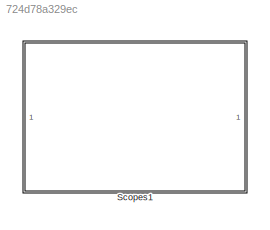
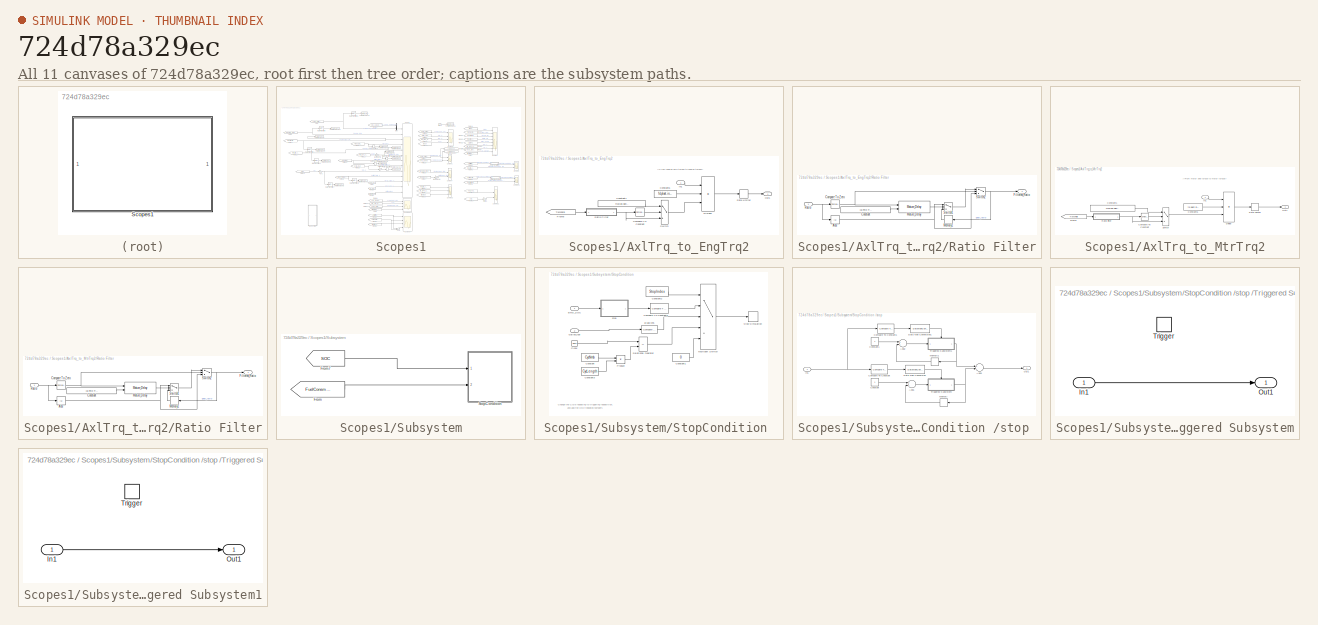
[diagram: thumbnail index - all 11 canvases of the model, root first then tree order]
MODEL slx_724d78a329ec
KIND library
CONFIG AbsTol = auto
CONFIG EnableMultiTasking = off
CONFIG FixedStep = auto
CONFIG MaxStep = auto
CONFIG MinStep = auto
CONFIG RelTol = 1e-3
CONFIG SampleTimeConstraint = Unconstrained
CONFIG Solver = VariableStepAuto
CONFIG SolverName = VariableStepAuto
CONFIG StartTime = 0.0
CONFIG StopTime = 10.0
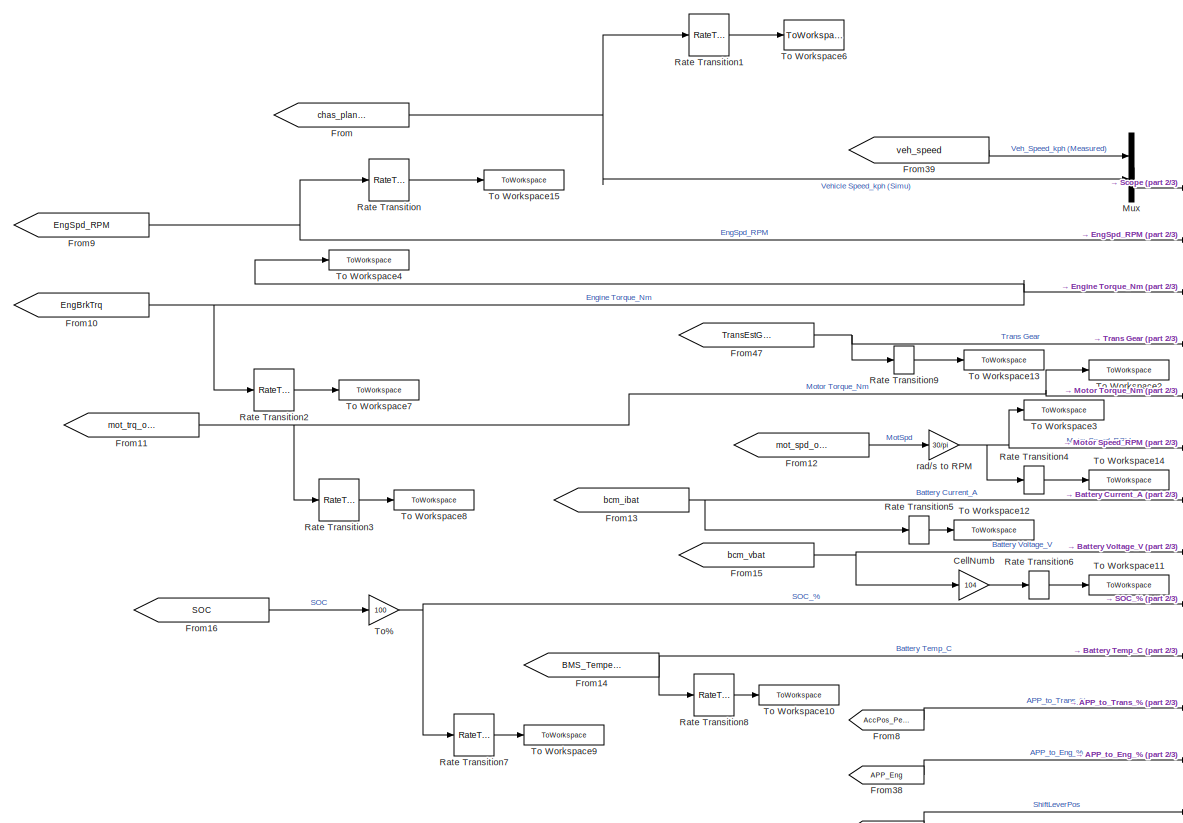
[diagram: Scopes1 - part 1/3, middle left region]
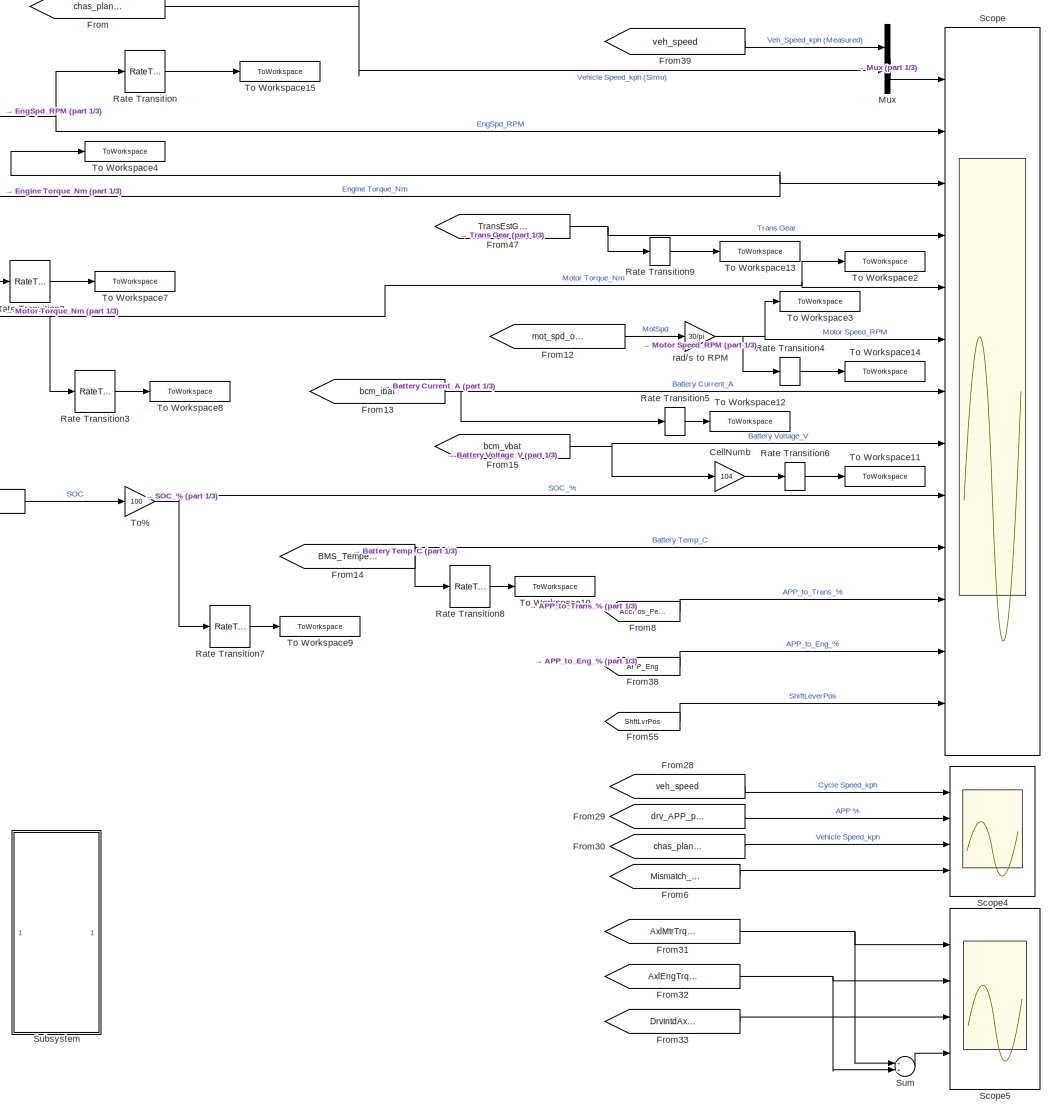
[diagram: Scopes1 - part 2/3, left side, full height]
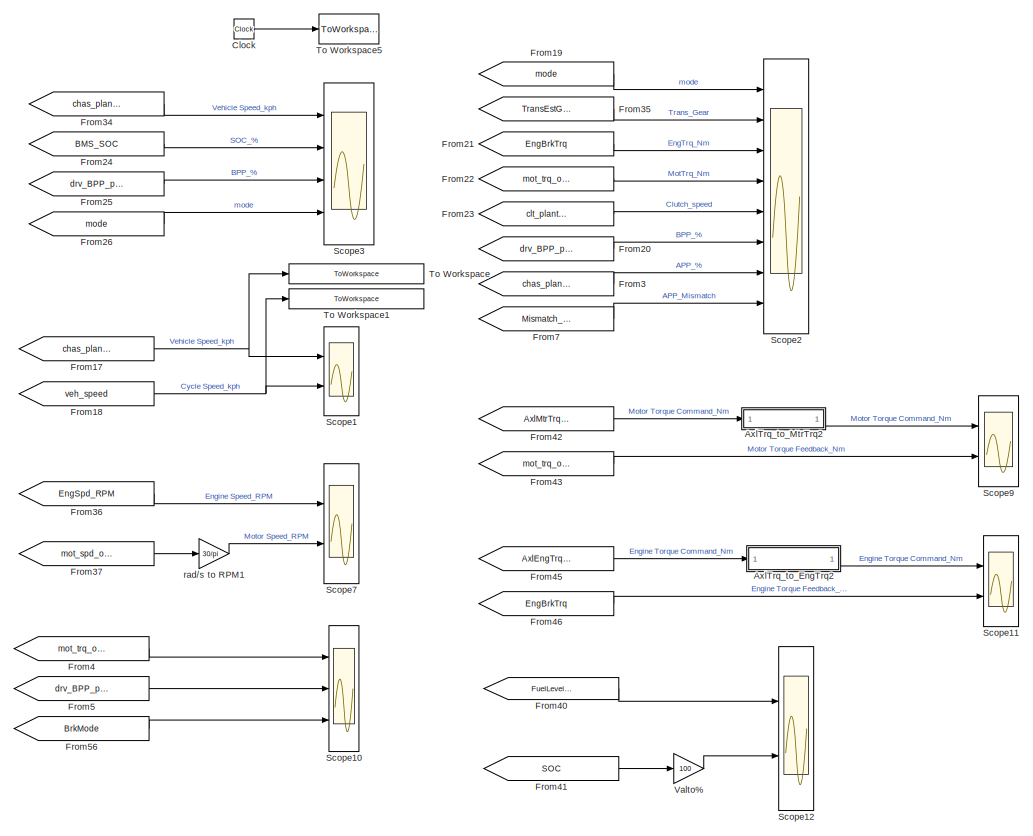
[diagram: Scopes1 - part 3/3, middle right region]
BLOCK [SubSystem] Scopes1
  Ports = []
  RequestExecContextInheritance = off
  Variant = off
BLOCK [SubSystem] Scopes1/AxlTrq_to_EngTrq2
  Ports = [1, 1]
  RequestExecContextInheritance = off
  Variant = off
BLOCK [Reference] Scopes1/AxlTrq_to_EngTrq2/Compare To Constant  REF=simulink/Logic and Bit
Operations/Compare
To Constant
  Ports = [1, 1]
  SourceBlock = simulink/Logic and Bit\nOperations/Compare\nTo Constant
  SourceProductBaseCode = SL
  SourceProductName = Simulink
  SourceType = Compare To Constant
BLOCK [Constant] Scopes1/AxlTrq_to_EngTrq2/Constant1
  Value = max(gb.plant.init.ratio.map)
BLOCK [Constant] Scopes1/AxlTrq_to_EngTrq2/Constant5
  Value = fd.plant.init.ratio
BLOCK [Product] Scopes1/AxlTrq_to_EngTrq2/Divide1
  InputSameDT = off
  Inputs = *//
  OutDataTypeStr = Inherit: Inherit via internal rule
  Ports = [3, 1]
  RndMeth = Floor
  SaturateOnIntegerOverflow = off
BLOCK [From] Scopes1/AxlTrq_to_EngTrq2/From8
  GotoTag = TransRatio
  TagVisibility = global
BLOCK [Inport] Scopes1/AxlTrq_to_EngTrq2/In1
  IconDisplay = Port number
BLOCK [Outport] Scopes1/AxlTrq_to_EngTrq2/Out1
  IconDisplay = Port number
BLOCK [RateLimiter] Scopes1/AxlTrq_to_EngTrq2/Rate Limiter
  FallingSlewLimit = Engine.trq_derate
  RisingSlewLimit = Engine.trq_uprate
BLOCK [SubSystem] Scopes1/AxlTrq_to_EngTrq2/Ratio Filter
  Ports = [1, 1]
  RequestExecContextInheritance = off
  Variant = off
BLOCK [Abs] Scopes1/AxlTrq_to_EngTrq2/Ratio Filter/Abs
  SaturateOnIntegerOverflow = off
BLOCK [Reference] Scopes1/AxlTrq_to_EngTrq2/Ratio Filter/Compare To Zero  REF=simulink/Logic and Bit
Operations/Compare
To Zero
  Ports = [1, 1]
  SourceBlock = simulink/Logic and Bit\nOperations/Compare\nTo Zero
  SourceProductBaseCode = SL
  SourceProductName = Simulink
  SourceType = Compare To Zero
BLOCK [Constant] Scopes1/AxlTrq_to_EngTrq2/Ratio Filter/Constant
  Value = cal.Time.TrnsOvrllEstTrqRatioSwitch
BLOCK [Outport] Scopes1/AxlTrq_to_EngTrq2/Ratio Filter/Filtered_Ratio
  IconDisplay = Port number
BLOCK [Reference] Scopes1/AxlTrq_to_EngTrq2/Ratio Filter/Mature_Delay  REF=EC2_libraries/Mature_Delay
  Ports = [2, 1]
  SourceBlock = EC2_libraries/Mature_Delay
  SourceProductName = The database <userpath>\AppData\Roaming\MathWorks\MATLAB\R2017b\slblocks_master.db is locked, or a table in the database is locked. (database is locked)
  SourceType = SubSystem
BLOCK [Memory] Scopes1/AxlTrq_to_EngTrq2/Ratio Filter/Memory1
  InitialCondition = 1
BLOCK [Inport] Scopes1/AxlTrq_to_EngTrq2/Ratio Filter/Ratio
  IconDisplay = Port number
BLOCK [Switch] Scopes1/AxlTrq_to_EngTrq2/Ratio Filter/Switch1
  InputSameDT = off
  SaturateOnIntegerOverflow = off
  Threshold = 1
BLOCK [Switch] Scopes1/AxlTrq_to_EngTrq2/Ratio Filter/Switch2
  InputSameDT = off
  SaturateOnIntegerOverflow = off
  Threshold = 1
BLOCK [Switch] Scopes1/AxlTrq_to_EngTrq2/Switch
  Criteria = u2 > Threshold
  InputSameDT = off
  SaturateOnIntegerOverflow = off
BLOCK [SubSystem] Scopes1/AxlTrq_to_MtrTrq2
  Ports = [1, 1]
  RequestExecContextInheritance = off
  Variant = off
BLOCK [Reference] Scopes1/AxlTrq_to_MtrTrq2/Compare To Constant  REF=simulink/Logic and Bit
Operations/Compare
To Constant
  Ports = [1, 1]
  SourceBlock = simulink/Logic and Bit\nOperations/Compare\nTo Constant
  SourceProductBaseCode = SL
  SourceProductName = Simulink
  SourceType = Compare To Constant
BLOCK [Constant] Scopes1/AxlTrq_to_MtrTrq2/Constant1
  Value = max(gb.plant.init.ratio.map)
BLOCK [Constant] Scopes1/AxlTrq_to_MtrTrq2/Constant5
  Value = fd.plant.init.ratio
BLOCK [Product] Scopes1/AxlTrq_to_MtrTrq2/Divide
  InputSameDT = off
  Inputs = *//
  OutDataTypeStr = Inherit: Inherit via internal rule
  Ports = [3, 1]
  RndMeth = Floor
  SaturateOnIntegerOverflow = off
BLOCK [From] Scopes1/AxlTrq_to_MtrTrq2/From8
  GotoTag = TransRatio
  TagVisibility = global
BLOCK [Inport] Scopes1/AxlTrq_to_MtrTrq2/In1
  IconDisplay = Port number
BLOCK [Outport] Scopes1/AxlTrq_to_MtrTrq2/Out1
  IconDisplay = Port number
BLOCK [RateLimiter] Scopes1/AxlTrq_to_MtrTrq2/Rate Limiter
  FallingSlewLimit = mcu.plant.init.trq_derate
  RisingSlewLimit = mcu.plant.init.trq_uprate
BLOCK [SubSystem] Scopes1/AxlTrq_to_MtrTrq2/Ratio Filter
  Ports = [1, 1]
  RequestExecContextInheritance = off
  Variant = off
BLOCK [Abs] Scopes1/AxlTrq_to_MtrTrq2/Ratio Filter/Abs
  SaturateOnIntegerOverflow = off
BLOCK [Reference] Scopes1/AxlTrq_to_MtrTrq2/Ratio Filter/Compare To Zero  REF=simulink/Logic and Bit
Operations/Compare
To Zero
  Ports = [1, 1]
  SourceBlock = simulink/Logic and Bit\nOperations/Compare\nTo Zero
  SourceProductBaseCode = SL
  SourceProductName = Simulink
  SourceType = Compare To Zero
BLOCK [Constant] Scopes1/AxlTrq_to_MtrTrq2/Ratio Filter/Constant
  Value = cal.Time.TrnsOvrllEstTrqRatioSwitch
BLOCK [Outport] Scopes1/AxlTrq_to_MtrTrq2/Ratio Filter/Filtered_Ratio
  IconDisplay = Port number
BLOCK [Reference] Scopes1/AxlTrq_to_MtrTrq2/Ratio Filter/Mature_Delay  REF=EC2_libraries/Mature_Delay
  Ports = [2, 1]
  SourceBlock = EC2_libraries/Mature_Delay
  SourceProductName = The database <userpath>\AppData\Roaming\MathWorks\MATLAB\R2017b\slblocks_master.db is locked, or a table in the database is locked. (database is locked)
  SourceType = SubSystem
BLOCK [Memory] Scopes1/AxlTrq_to_MtrTrq2/Ratio Filter/Memory1
  InitialCondition = 1
BLOCK [Inport] Scopes1/AxlTrq_to_MtrTrq2/Ratio Filter/Ratio
  IconDisplay = Port number
BLOCK [Switch] Scopes1/AxlTrq_to_MtrTrq2/Ratio Filter/Switch1
  InputSameDT = off
  SaturateOnIntegerOverflow = off
  Threshold = 1
BLOCK [Switch] Scopes1/AxlTrq_to_MtrTrq2/Ratio Filter/Switch2
  InputSameDT = off
  SaturateOnIntegerOverflow = off
  Threshold = 1
BLOCK [Switch] Scopes1/AxlTrq_to_MtrTrq2/Switch
  Criteria = u2 > Threshold
  InputSameDT = off
  SaturateOnIntegerOverflow = off
BLOCK [Gain] Scopes1/CellNumb
  Gain = 104
  OutDataTypeStr = Inherit: Inherit via internal rule
  ParamDataTypeStr = Inherit: Inherit via internal rule
  SaturateOnIntegerOverflow = off
BLOCK [Clock] Scopes1/Clock
  Decimation = WORKSPACE_DECIMATION
BLOCK [From] Scopes1/From
  GotoTag = chas_plant_lin_spd_out
  TagVisibility = global
BLOCK [From] Scopes1/From10
  GotoTag = EngBrkTrq
  TagVisibility = global
BLOCK [From] Scopes1/From11
  GotoTag = mot_trq_out
  TagVisibility = global
BLOCK [From] Scopes1/From12
  GotoTag = mot_spd_out
  TagVisibility = global
BLOCK [From] Scopes1/From13
  GotoTag = bcm_ibat
  TagVisibility = global
BLOCK [From] Scopes1/From14
  GotoTag = BMS_Temperatur
  TagVisibility = global
BLOCK [From] Scopes1/From15
  GotoTag = bcm_vbat
  TagVisibility = global
BLOCK [From] Scopes1/From16
  GotoTag = SOC
  TagVisibility = global
BLOCK [From] Scopes1/From17
  GotoTag = chas_plant_lin_spd_out
  TagVisibility = global
BLOCK [From] Scopes1/From18
  GotoTag = veh_speed
  TagVisibility = global
BLOCK [From] Scopes1/From19
  GotoTag = mode
  TagVisibility = global
BLOCK [From] Scopes1/From20
  GotoTag = drv_BPP_percent
  TagVisibility = global
BLOCK [From] Scopes1/From21
  GotoTag = EngBrkTrq
  TagVisibility = global
BLOCK [From] Scopes1/From22
  GotoTag = mot_trq_out
  TagVisibility = global
BLOCK [From] Scopes1/From23
  GotoTag = clt_plant_spd_in
BLOCK [From] Scopes1/From24
  GotoTag = BMS_SOC
  TagVisibility = global
BLOCK [From] Scopes1/From25
  GotoTag = drv_BPP_percent
  TagVisibility = global
BLOCK [From] Scopes1/From26
  GotoTag = mode
  TagVisibility = global
BLOCK [From] Scopes1/From28
  GotoTag = veh_speed
  TagVisibility = global
BLOCK [From] Scopes1/From29
  GotoTag = drv_APP_percent
  TagVisibility = global
BLOCK [From] Scopes1/From3
  GotoTag = chas_plant_lin_accel
  TagVisibility = global
BLOCK [From] Scopes1/From30
  GotoTag = chas_plant_lin_spd_out
  TagVisibility = global
BLOCK [From] Scopes1/From31
  GotoTag = AxlMtrTrqCmd
  TagVisibility = global
BLOCK [From] Scopes1/From32
  GotoTag = AxlEngTrqCmd
  TagVisibility = global
BLOCK [From] Scopes1/From33
  GotoTag = DrvIntdAxleTrq
  TagVisibility = global
BLOCK [From] Scopes1/From34
  GotoTag = chas_plant_lin_spd_out
  TagVisibility = global
BLOCK [From] Scopes1/From35
  GotoTag = TransEstGear
  TagVisibility = global
BLOCK [From] Scopes1/From36
  GotoTag = EngSpd_RPM
  TagVisibility = global
BLOCK [From] Scopes1/From37
  GotoTag = mot_spd_out
  TagVisibility = global
BLOCK [From] Scopes1/From38
  GotoTag = APP_Eng
  TagVisibility = global
BLOCK [From] Scopes1/From39
  GotoTag = veh_speed
  TagVisibility = global
BLOCK [From] Scopes1/From4
  GotoTag = mot_trq_out
  TagVisibility = global
BLOCK [From] Scopes1/From40
  GotoTag = FuelLevelPct
  TagVisibility = global
BLOCK [From] Scopes1/From41
  GotoTag = SOC
  TagVisibility = global
BLOCK [From] Scopes1/From42
  GotoTag = AxlMtrTrqCmd
  TagVisibility = global
BLOCK [From] Scopes1/From43
  GotoTag = mot_trq_out
  TagVisibility = global
BLOCK [From] Scopes1/From45
  GotoTag = AxlEngTrqCmd
  TagVisibility = global
BLOCK [From] Scopes1/From46
  GotoTag = EngBrkTrq
  TagVisibility = global
BLOCK [From] Scopes1/From47
  GotoTag = TransEstGear
  TagVisibility = global
BLOCK [From] Scopes1/From5
  GotoTag = drv_BPP_percent
  TagVisibility = global
BLOCK [From] Scopes1/From55
  GotoTag = ShftLvrPos
  TagVisibility = global
BLOCK [From] Scopes1/From56
  GotoTag = BrkMode
  TagVisibility = global
BLOCK [From] Scopes1/From6
  GotoTag = Mismatch_APP_ON
BLOCK [From] Scopes1/From7
  GotoTag = Mismatch_APP_ON
BLOCK [From] Scopes1/From8
  GotoTag = AccPos_Perc
  TagVisibility = global
BLOCK [From] Scopes1/From9
  GotoTag = EngSpd_RPM
  TagVisibility = global
BLOCK [Mux] Scopes1/Mux
  DisplayOption = bar
  Inputs = 2
  Ports = [2, 1]
BLOCK [RateTransition] Scopes1/Rate Transition
  OutPortSampleTime = 1
BLOCK [RateTransition] Scopes1/Rate Transition1
  OutPortSampleTime = 1
BLOCK [RateTransition] Scopes1/Rate Transition2
  OutPortSampleTime = 1
BLOCK [RateTransition] Scopes1/Rate Transition3
  OutPortSampleTime = 1
BLOCK [RateTransition] Scopes1/Rate Transition4
  OutPortSampleTime = 1
BLOCK [RateTransition] Scopes1/Rate Transition5
  OutPortSampleTime = 1
BLOCK [RateTransition] Scopes1/Rate Transition6
  OutPortSampleTime = 1
BLOCK [RateTransition] Scopes1/Rate Transition7
  OutPortSampleTime = 1
BLOCK [RateTransition] Scopes1/Rate Transition8
  OutPortSampleTime = 1
BLOCK [RateTransition] Scopes1/Rate Transition9
  OutPortSampleTime = 1
BLOCK [Scope] Scopes1/Scope
  NumInputPorts = 13
  Ports = [13]
  ScopeSpecificationString = Simulink.scopes.TimeScopeBlockCfg('CurrentConfiguration', extmgr.ConfigurationSet(extmgr.Configuration('Core','General UI',true),extmgr.Configuration('Core','Source UI',true),extmgr.Configuration('Sources','WiredSimulink',true,'DataLoggingVariableName','ScopeData20'),extmgr.Configuration('Visuals','Time Domain',true,'SerializedDisplays',{struct('MinYLimReal','-6.49865','MaxYLimReal','58.48788','YL...<+9332ch>
BLOCK [Scope] Scopes1/Scope1
  NumInputPorts = 2
  Ports = [2]
  ScopeSpecificationString = Simulink.scopes.TimeScopeBlockCfg('CurrentConfiguration', extmgr.ConfigurationSet(extmgr.Configuration('Core','General UI',true,'FigureColor',[0 0 0],'DisplayFullSourceName',true),extmgr.Configuration('Core','Source UI',true),extmgr.Configuration('Sources','WiredSimulink',true,'DataLoggingVariableName','ScopeData22'),extmgr.Configuration('Visuals','Time Domain',true,'SerializedDisplays',{struct('M...<+1747ch>
BLOCK [Scope] Scopes1/Scope10
  NumInputPorts = 3
  Ports = [3]
  ScopeSpecificationString = Simulink.scopes.TimeScopeBlockCfg('CurrentConfiguration', extmgr.ConfigurationSet(extmgr.Configuration('Core','General UI',true,'DisplayFullSourceName',true),extmgr.Configuration('Core','Source UI',true),extmgr.Configuration('Sources','WiredSimulink',true,'DataLoggingVariableName','ScopeData1'),extmgr.Configuration('Visuals','Time Domain',true,'SerializedDisplays',{struct('MinYLimReal','-188.04473...<+1585ch>
BLOCK [Scope] Scopes1/Scope11
  NumInputPorts = 2
  Ports = [2]
  ScopeSpecificationString = Simulink.scopes.TimeScopeBlockCfg('CurrentConfiguration', extmgr.ConfigurationSet(extmgr.Configuration('Core','General UI',true),extmgr.Configuration('Core','Source UI',true),extmgr.Configuration('Sources','WiredSimulink',true,'DataLoggingVariableName','ScopeData25'),extmgr.Configuration('Visuals','Time Domain',true,'SerializedDisplays',{struct('MinYLimReal','-86.11156','MaxYLimReal','266.44873','...<+1824ch>
BLOCK [Scope] Scopes1/Scope12
  NumInputPorts = 2
  Ports = [2]
  ScopeSpecificationString = Simulink.scopes.TimeScopeBlockCfg('CurrentConfiguration', extmgr.ConfigurationSet(extmgr.Configuration('Core','General UI',true),extmgr.Configuration('Core','Source UI',true),extmgr.Configuration('Sources','WiredSimulink',true,'DataLoggingVariableName','ScopeData1'),extmgr.Configuration('Visuals','Time Domain',true,'SerializedDisplays',{struct('MinYLimReal','-11.9375','MaxYLimReal','112.4375','YLa...<+1451ch>
BLOCK [Scope] Scopes1/Scope2
  NumInputPorts = 8
  Ports = [8]
  ScopeSpecificationString = Simulink.scopes.TimeScopeBlockCfg('CurrentConfiguration', extmgr.ConfigurationSet(extmgr.Configuration('Core','General UI',true),extmgr.Configuration('Core','Source UI',true),extmgr.Configuration('Sources','WiredSimulink',true,'DataLoggingVariableName','ScopeData23'),extmgr.Configuration('Visuals','Time Domain',true,'SerializedDisplays',{struct('MinYLimReal','-2.5','MaxYLimReal','22.5','YLabelReal...<+6243ch>
BLOCK [Scope] Scopes1/Scope3
  NumInputPorts = 4
  Ports = [4]
  ScopeSpecificationString = Simulink.scopes.TimeScopeBlockCfg('CurrentConfiguration', extmgr.ConfigurationSet(extmgr.Configuration('Core','General UI',true),extmgr.Configuration('Core','Source UI',true),extmgr.Configuration('Sources','WiredSimulink',true,'DataLoggingVariableName','ScopeData21'),extmgr.Configuration('Visuals','Time Domain',true,'SerializedDisplays',{struct('MinYLimReal','-15.91033','MaxYLimReal','143.19295','...<+3506ch>
BLOCK [Scope] Scopes1/Scope4
  NumInputPorts = 4
  Ports = [4]
  ScopeSpecificationString = Simulink.scopes.TimeScopeBlockCfg('CurrentConfiguration', extmgr.ConfigurationSet(extmgr.Configuration('Core','General UI',true,'DisplayFullSourceName',true),extmgr.Configuration('Core','Source UI',true),extmgr.Configuration('Sources','WiredSimulink',true,'DataLoggingVariableName','ScopeData26'),extmgr.Configuration('Visuals','Time Domain',true,'SerializedDisplays',{struct('MinYLimReal','-11.3169'...<+1549ch>
BLOCK [Scope] Scopes1/Scope5
  NumInputPorts = 4
  Ports = [4]
  ScopeSpecificationString = Simulink.scopes.TimeScopeBlockCfg('CurrentConfiguration', extmgr.ConfigurationSet(extmgr.Configuration('Core','General UI',true,'DisplayFullSourceName',true),extmgr.Configuration('Core','Source UI',true),extmgr.Configuration('Sources','WiredSimulink',true,'DataLoggingVariableName','ScopeData27'),extmgr.Configuration('Visuals','Time Domain',true,'SerializedDisplays',{struct('MinYLimReal','-4375.269...<+3227ch>
BLOCK [Scope] Scopes1/Scope7
  NumInputPorts = 2
  Ports = [2]
  ScopeSpecificationString = Simulink.scopes.TimeScopeBlockCfg('CurrentConfiguration', extmgr.ConfigurationSet(extmgr.Configuration('Core','General UI',true),extmgr.Configuration('Core','Source UI',true),extmgr.Configuration('Sources','WiredSimulink',true,'DataLoggingVariableName','ScopeData24'),extmgr.Configuration('Visuals','Time Domain',true,'SerializedDisplays',{struct('MinYLimReal','-640.60607','MaxYLimReal','5860.94764'...<+2224ch>
BLOCK [Scope] Scopes1/Scope9
  NumInputPorts = 2
  Ports = [2]
  ScopeSpecificationString = Simulink.scopes.TimeScopeBlockCfg('CurrentConfiguration', extmgr.ConfigurationSet(extmgr.Configuration('Core','General UI',true),extmgr.Configuration('Core','Source UI',true),extmgr.Configuration('Sources','WiredSimulink',true,'DataLoggingVariableName','ScopeData29'),extmgr.Configuration('Visuals','Time Domain',true,'SerializedDisplays',{struct('MinYLimReal','-603.35564','MaxYLimReal','348.86592',...<+1496ch>
BLOCK [SubSystem] Scopes1/Subsystem
  Ports = []
  RequestExecContextInheritance = off
  Variant = off
BLOCK [From] Scopes1/Subsystem/From
  GotoTag = FuelConsmp_gal
  IconDisplay = Tag and signal name
  TagVisibility = global
BLOCK [From] Scopes1/Subsystem/From7
  GotoTag = SOC
  TagVisibility = global
BLOCK [SubSystem] Scopes1/Subsystem/StopCondition 
  Ports = [2]
  RequestExecContextInheritance = off
  Variant = off
BLOCK [Reference] Scopes1/Subsystem/StopCondition /10 gallons  REF=simulink/Logic and Bit
Operations/Compare
To Constant
  Ports = [1, 1]
  SourceBlock = simulink/Logic and Bit\nOperations/Compare\nTo Constant
  SourceProductBaseCode = SL
  SourceProductName = Simulink
  SourceType = Compare To Constant
BLOCK [Inport] Scopes1/Subsystem/StopCondition /BMS_SOC
  IconDisplay = Port number
BLOCK [Clock] Scopes1/Subsystem/StopCondition /Clock
BLOCK [Reference] Scopes1/Subsystem/StopCondition /Compare To Constant2  REF=simulink/Logic and Bit
Operations/Compare
To Constant
  Ports = [1, 1]
  SourceBlock = simulink/Logic and Bit\nOperations/Compare\nTo Constant
  SourceProductBaseCode = SL
  SourceProductName = Simulink
  SourceType = Compare To Constant
BLOCK [Constant] Scopes1/Subsystem/StopCondition /Constant
  Value = CycNmb
BLOCK [Constant] Scopes1/Subsystem/StopCondition /Constant1
  Value = 0
BLOCK [Constant] Scopes1/Subsystem/StopCondition /Constant2
  Value = StopIndex
BLOCK [Constant] Scopes1/Subsystem/StopCondition /Constant3
  Value = CycLength
BLOCK [Inport] Scopes1/Subsystem/StopCondition /Gallon_fuel
  IconDisplay = Port number
  Port = 2
BLOCK [MultiPortSwitch] Scopes1/Subsystem/StopCondition /Multiport Switch
  InputSameDT = off
  Inputs = 4
  Ports = [5, 1]
  SaturateOnIntegerOverflow = off
BLOCK [Product] Scopes1/Subsystem/StopCondition /Product
  InputSameDT = off
  OutDataTypeStr = Inherit: Inherit via internal rule
  Ports = [2, 1]
  RndMeth = Floor
  SaturateOnIntegerOverflow = off
BLOCK [RelationalOperator] Scopes1/Subsystem/StopCondition /Relational Operator
  InputSameDT = off
  Operator = ==
  OutDataTypeStr = boolean
  Ports = [2, 1]
  RndMeth = Simplest
BLOCK [Stop] Scopes1/Subsystem/StopCondition /Stop Simulation
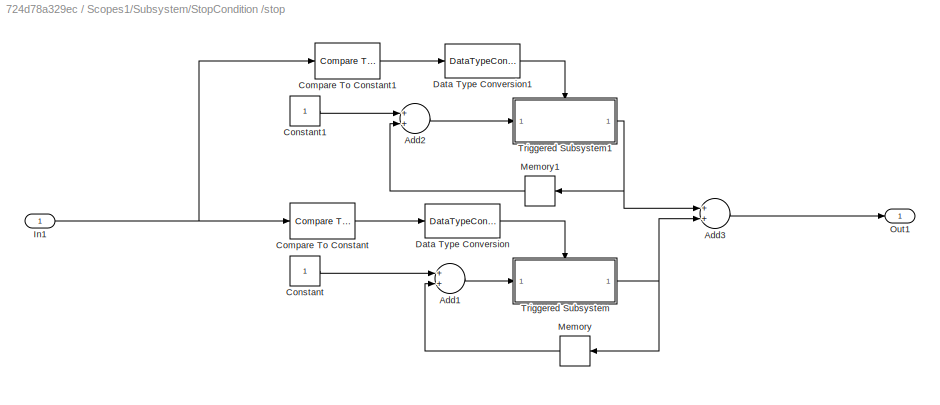
BLOCK [SubSystem] Scopes1/Subsystem/StopCondition /stop 
  Ports = [1, 1]
  RequestExecContextInheritance = off
  Variant = off
BLOCK [Sum] Scopes1/Subsystem/StopCondition /stop /Add1
  InputSameDT = off
  OutDataTypeStr = Inherit: Inherit via internal rule
  Ports = [2, 1]
  SaturateOnIntegerOverflow = off
BLOCK [Sum] Scopes1/Subsystem/StopCondition /stop /Add2
  InputSameDT = off
  OutDataTypeStr = Inherit: Inherit via internal rule
  Ports = [2, 1]
  SaturateOnIntegerOverflow = off
BLOCK [Sum] Scopes1/Subsystem/StopCondition /stop /Add3
  InputSameDT = off
  OutDataTypeStr = Inherit: Inherit via internal rule
  Ports = [2, 1]
  SaturateOnIntegerOverflow = off
BLOCK [Reference] Scopes1/Subsystem/StopCondition /stop /Compare To Constant  REF=simulink/Logic and Bit
Operations/Compare
To Constant
  Ports = [1, 1]
  SourceBlock = simulink/Logic and Bit\nOperations/Compare\nTo Constant
  SourceProductBaseCode = SL
  SourceProductName = Simulink
  SourceType = Compare To Constant
BLOCK [Reference] Scopes1/Subsystem/StopCondition /stop /Compare To Constant1  REF=simulink/Logic and Bit
Operations/Compare
To Constant
  Ports = [1, 1]
  SourceBlock = simulink/Logic and Bit\nOperations/Compare\nTo Constant
  SourceProductBaseCode = SL
  SourceProductName = Simulink
  SourceType = Compare To Constant
BLOCK [Constant] Scopes1/Subsystem/StopCondition /stop /Constant
BLOCK [Constant] Scopes1/Subsystem/StopCondition /stop /Constant1
BLOCK [DataTypeConversion] Scopes1/Subsystem/StopCondition /stop /Data Type Conversion
  OutDataTypeStr = int8
  RndMeth = Floor
  SaturateOnIntegerOverflow = off
BLOCK [DataTypeConversion] Scopes1/Subsystem/StopCondition /stop /Data Type Conversion1
  OutDataTypeStr = int8
  RndMeth = Floor
  SaturateOnIntegerOverflow = off
BLOCK [Inport] Scopes1/Subsystem/StopCondition /stop /In1
  IconDisplay = Port number
BLOCK [Memory] Scopes1/Subsystem/StopCondition /stop /Memory
BLOCK [Memory] Scopes1/Subsystem/StopCondition /stop /Memory1
BLOCK [Outport] Scopes1/Subsystem/StopCondition /stop /Out1
  IconDisplay = Port number
BLOCK [SubSystem] Scopes1/Subsystem/StopCondition /stop /Triggered Subsystem
  Ports = [1, 1, 0, 1]
  RequestExecContextInheritance = off
  TreatAsAtomicUnit = on
  Variant = off
BLOCK [Inport] Scopes1/Subsystem/StopCondition /stop /Triggered Subsystem/In1
  IconDisplay = Port number
BLOCK [Outport] Scopes1/Subsystem/StopCondition /stop /Triggered Subsystem/Out1
  IconDisplay = Port number
BLOCK [TriggerPort] Scopes1/Subsystem/StopCondition /stop /Triggered Subsystem/Trigger
  Ports = []
  StatesWhenEnabling = held
  VariantControl = Variant
BLOCK [SubSystem] Scopes1/Subsystem/StopCondition /stop /Triggered Subsystem1
  Ports = [1, 1, 0, 1]
  RequestExecContextInheritance = off
  TreatAsAtomicUnit = on
  Variant = off
BLOCK [Inport] Scopes1/Subsystem/StopCondition /stop /Triggered Subsystem1/In1
  IconDisplay = Port number
BLOCK [Outport] Scopes1/Subsystem/StopCondition /stop /Triggered Subsystem1/Out1
  IconDisplay = Port number
BLOCK [TriggerPort] Scopes1/Subsystem/StopCondition /stop /Triggered Subsystem1/Trigger
  Ports = []
  StatesWhenEnabling = held
  VariantControl = Variant
BLOCK [Sum] Scopes1/Sum
  InputSameDT = off
  OutDataTypeStr = Inherit: Inherit via internal rule
  Ports = [2, 1]
  SaturateOnIntegerOverflow = off
BLOCK [ToWorkspace] Scopes1/To Workspace
  FixptAsFi = on
  MaxDataPoints = inf
  Ports = [1]
  SampleTime = -1
  Save2DSignal = 3-D array (concatenate along third dimension)
  VariableName = chas_plant_lin_spd_out
BLOCK [ToWorkspace] Scopes1/To Workspace1
  FixptAsFi = on
  MaxDataPoints = inf
  Ports = [1]
  SampleTime = -1
  Save2DSignal = 3-D array (concatenate along third dimension)
  VariableName = veh_speed
BLOCK [ToWorkspace] Scopes1/To Workspace10
  FixptAsFi = on
  MaxDataPoints = inf
  Ports = [1]
  SampleTime = -1
  Save2DSignal = 3-D array (concatenate along third dimension)
  VariableName = BMS_Temperatur
BLOCK [ToWorkspace] Scopes1/To Workspace11
  FixptAsFi = on
  MaxDataPoints = inf
  Ports = [1]
  SampleTime = -1
  Save2DSignal = 3-D array (concatenate along third dimension)
  VariableName = BMS_IstSpannung
BLOCK [ToWorkspace] Scopes1/To Workspace12
  FixptAsFi = on
  MaxDataPoints = inf
  Ports = [1]
  SampleTime = -1
  Save2DSignal = 3-D array (concatenate along third dimension)
  VariableName = BMS_IstStrom
BLOCK [ToWorkspace] Scopes1/To Workspace13
  FixptAsFi = on
  MaxDataPoints = inf
  Ports = [1]
  SampleTime = -1
  Save2DSignal = 3-D array (concatenate along third dimension)
  VariableName = TransEstGear
BLOCK [ToWorkspace] Scopes1/To Workspace14
  FixptAsFi = on
  MaxDataPoints = inf
  Ports = [1]
  SampleTime = -1
  Save2DSignal = 3-D array (concatenate along third dimension)
  VariableName = INV_Speed
BLOCK [ToWorkspace] Scopes1/To Workspace15
  FixptAsFi = on
  MaxDataPoints = inf
  Ports = [1]
  SampleTime = -1
  Save2DSignal = 3-D array (concatenate along third dimension)
  VariableName = EngSpd
BLOCK [ToWorkspace] Scopes1/To Workspace2
  FixptAsFi = on
  MaxDataPoints = inf
  Ports = [1]
  SampleTime = -1
  Save2DSignal = 3-D array (concatenate along third dimension)
  VariableName = mot_trq_out
BLOCK [ToWorkspace] Scopes1/To Workspace3
  FixptAsFi = on
  MaxDataPoints = inf
  Ports = [1]
  SampleTime = -1
  Save2DSignal = 3-D array (concatenate along third dimension)
  VariableName = motorSpd
BLOCK [ToWorkspace] Scopes1/To Workspace4
  FixptAsFi = on
  MaxDataPoints = inf
  Ports = [1]
  SampleTime = -1
  Save2DSignal = 3-D array (concatenate along third dimension)
  VariableName = Eng_trq_out
BLOCK [ToWorkspace] Scopes1/To Workspace5
  Decimation = WORKSPACE_DECIMATION
  FixptAsFi = on
  MaxDataPoints = inf
  Ports = [1]
  SampleTime = -1
  Save2DSignal = 3-D array (concatenate along third dimension)
  VariableName = Time
BLOCK [ToWorkspace] Scopes1/To Workspace6
  FixptAsFi = on
  MaxDataPoints = inf
  Ports = [1]
  SampleTime = -1
  VariableName = VehSpdAvgDrvn
BLOCK [ToWorkspace] Scopes1/To Workspace7
  FixptAsFi = on
  MaxDataPoints = inf
  Ports = [1]
  SampleTime = -1
  Save2DSignal = 3-D array (concatenate along third dimension)
  VariableName = EngActStdyStTorq
BLOCK [ToWorkspace] Scopes1/To Workspace8
  FixptAsFi = on
  MaxDataPoints = inf
  Ports = [1]
  SampleTime = -1
  Save2DSignal = 3-D array (concatenate along third dimension)
  VariableName = INV_OutputTorque
BLOCK [ToWorkspace] Scopes1/To Workspace9
  FixptAsFi = on
  MaxDataPoints = inf
  Ports = [1]
  SampleTime = -1
  Save2DSignal = 3-D array (concatenate along third dimension)
  VariableName = BMS_SOC
BLOCK [Gain] Scopes1/To%
  Gain = 100
  OutDataTypeStr = Inherit: Inherit via internal rule
  ParamDataTypeStr = Inherit: Inherit via internal rule
  SaturateOnIntegerOverflow = off
BLOCK [Gain] Scopes1/Valto%
  Gain = 100
  OutDataTypeStr = Inherit: Inherit via internal rule
  ParamDataTypeStr = Inherit: Inherit via internal rule
  SaturateOnIntegerOverflow = off
BLOCK [Gain] Scopes1/rad//s to RPM
  Gain = 30/pi
  OutDataTypeStr = Inherit: Inherit via internal rule
  ParamDataTypeStr = Inherit: Inherit via internal rule
  SaturateOnIntegerOverflow = off
BLOCK [Gain] Scopes1/rad//s to RPM1
  Gain = 30/pi
  OutDataTypeStr = Inherit: Inherit via internal rule
  ParamDataTypeStr = Inherit: Inherit via internal rule
  SaturateOnIntegerOverflow = off
ANNOTATION Scopes1/AxlTrq_to_EngTrq2: //From engine axle torque to engine torque//
ANNOTATION Scopes1/AxlTrq_to_MtrTrq2: //From motor axle torque to motor torque//
ANNOTATION Scopes1/Subsystem/StopCondition : Change the Cycle repeating to triggering repeatition, and add the cycle repeated numbers
LINE Scopes1/AxlTrq_to_EngTrq2/Compare To Constant:1 -> Scopes1/AxlTrq_to_EngTrq2/Switch:2
LINE Scopes1/AxlTrq_to_EngTrq2/Constant1:1 -> Scopes1/AxlTrq_to_EngTrq2/Switch:1
LINE Scopes1/AxlTrq_to_EngTrq2/Constant5:1 -> Scopes1/AxlTrq_to_EngTrq2/Divide1:2
LINE Scopes1/AxlTrq_to_EngTrq2/Divide1:1 -> Scopes1/AxlTrq_to_EngTrq2/Rate Limiter:1
LINE Scopes1/AxlTrq_to_EngTrq2/From8:1 -> Scopes1/AxlTrq_to_EngTrq2/Ratio Filter:1
LINE Scopes1/AxlTrq_to_EngTrq2/In1:1 -> Scopes1/AxlTrq_to_EngTrq2/Divide1:1
LINE Scopes1/AxlTrq_to_EngTrq2/Rate Limiter:1 -> Scopes1/AxlTrq_to_EngTrq2/Out1:1
NET Scopes1/AxlTrq_to_EngTrq2/Ratio Filter/Abs:1 -> Scopes1/AxlTrq_to_EngTrq2/Ratio Filter/Switch1:1, Scopes1/AxlTrq_to_EngTrq2/Ratio Filter/Switch2:3
NET Scopes1/AxlTrq_to_EngTrq2/Ratio Filter/Compare To Zero:1 -> Scopes1/AxlTrq_to_EngTrq2/Ratio Filter/Mature_Delay:1, Scopes1/AxlTrq_to_EngTrq2/Ratio Filter/Switch2:2
LINE Scopes1/AxlTrq_to_EngTrq2/Ratio Filter/Constant:1 -> Scopes1/AxlTrq_to_EngTrq2/Ratio Filter/Mature_Delay:2
LINE Scopes1/AxlTrq_to_EngTrq2/Ratio Filter/Mature_Delay:1 -> Scopes1/AxlTrq_to_EngTrq2/Ratio Filter/Switch1:2
LINE Scopes1/AxlTrq_to_EngTrq2/Ratio Filter/Memory1:1 -> Scopes1/AxlTrq_to_EngTrq2/Ratio Filter/Switch1:3
NET Scopes1/AxlTrq_to_EngTrq2/Ratio Filter/Ratio:1 -> Scopes1/AxlTrq_to_EngTrq2/Ratio Filter/Abs:1, Scopes1/AxlTrq_to_EngTrq2/Ratio Filter/Compare To Zero:1
LINE Scopes1/AxlTrq_to_EngTrq2/Ratio Filter/Switch1:1 -> Scopes1/AxlTrq_to_EngTrq2/Ratio Filter/Switch2:1
NET Scopes1/AxlTrq_to_EngTrq2/Ratio Filter/Switch2:1 -> Scopes1/AxlTrq_to_EngTrq2/Ratio Filter/Filtered_Ratio:1, Scopes1/AxlTrq_to_EngTrq2/Ratio Filter/Memory1:1
NET Scopes1/AxlTrq_to_EngTrq2/Ratio Filter:1 -> Scopes1/AxlTrq_to_EngTrq2/Compare To Constant:1, Scopes1/AxlTrq_to_EngTrq2/Switch:3
LINE Scopes1/AxlTrq_to_EngTrq2/Switch:1 -> Scopes1/AxlTrq_to_EngTrq2/Divide1:3
LINE Scopes1/AxlTrq_to_EngTrq2:1 -> Scopes1/Scope11:1
LINE Scopes1/AxlTrq_to_MtrTrq2/Compare To Constant:1 -> Scopes1/AxlTrq_to_MtrTrq2/Switch:2
LINE Scopes1/AxlTrq_to_MtrTrq2/Constant1:1 -> Scopes1/AxlTrq_to_MtrTrq2/Switch:1
LINE Scopes1/AxlTrq_to_MtrTrq2/Constant5:1 -> Scopes1/AxlTrq_to_MtrTrq2/Divide:2
LINE Scopes1/AxlTrq_to_MtrTrq2/Divide:1 -> Scopes1/AxlTrq_to_MtrTrq2/Rate Limiter:1
LINE Scopes1/AxlTrq_to_MtrTrq2/From8:1 -> Scopes1/AxlTrq_to_MtrTrq2/Ratio Filter:1
LINE Scopes1/AxlTrq_to_MtrTrq2/In1:1 -> Scopes1/AxlTrq_to_MtrTrq2/Divide:1
LINE Scopes1/AxlTrq_to_MtrTrq2/Rate Limiter:1 -> Scopes1/AxlTrq_to_MtrTrq2/Out1:1
NET Scopes1/AxlTrq_to_MtrTrq2/Ratio Filter/Abs:1 -> Scopes1/AxlTrq_to_MtrTrq2/Ratio Filter/Switch1:1, Scopes1/AxlTrq_to_MtrTrq2/Ratio Filter/Switch2:3
NET Scopes1/AxlTrq_to_MtrTrq2/Ratio Filter/Compare To Zero:1 -> Scopes1/AxlTrq_to_MtrTrq2/Ratio Filter/Mature_Delay:1, Scopes1/AxlTrq_to_MtrTrq2/Ratio Filter/Switch2:2
LINE Scopes1/AxlTrq_to_MtrTrq2/Ratio Filter/Constant:1 -> Scopes1/AxlTrq_to_MtrTrq2/Ratio Filter/Mature_Delay:2
LINE Scopes1/AxlTrq_to_MtrTrq2/Ratio Filter/Mature_Delay:1 -> Scopes1/AxlTrq_to_MtrTrq2/Ratio Filter/Switch1:2
LINE Scopes1/AxlTrq_to_MtrTrq2/Ratio Filter/Memory1:1 -> Scopes1/AxlTrq_to_MtrTrq2/Ratio Filter/Switch1:3
NET Scopes1/AxlTrq_to_MtrTrq2/Ratio Filter/Ratio:1 -> Scopes1/AxlTrq_to_MtrTrq2/Ratio Filter/Abs:1, Scopes1/AxlTrq_to_MtrTrq2/Ratio Filter/Compare To Zero:1
LINE Scopes1/AxlTrq_to_MtrTrq2/Ratio Filter/Switch1:1 -> Scopes1/AxlTrq_to_MtrTrq2/Ratio Filter/Switch2:1
NET Scopes1/AxlTrq_to_MtrTrq2/Ratio Filter/Switch2:1 -> Scopes1/AxlTrq_to_MtrTrq2/Ratio Filter/Filtered_Ratio:1, Scopes1/AxlTrq_to_MtrTrq2/Ratio Filter/Memory1:1
NET Scopes1/AxlTrq_to_MtrTrq2/Ratio Filter:1 -> Scopes1/AxlTrq_to_MtrTrq2/Compare To Constant:1, Scopes1/AxlTrq_to_MtrTrq2/Switch:3
LINE Scopes1/AxlTrq_to_MtrTrq2/Switch:1 -> Scopes1/AxlTrq_to_MtrTrq2/Divide:3
LINE Scopes1/AxlTrq_to_MtrTrq2:1 -> Scopes1/Scope9:1
LINE Scopes1/CellNumb:1 -> Scopes1/Rate Transition6:1
LINE Scopes1/Clock:1 -> Scopes1/To Workspace5:1
NET Scopes1/From10:1 -> Scopes1/Rate Transition2:1, Scopes1/Scope:3, Scopes1/To Workspace4:1
NET Scopes1/From11:1 -> Scopes1/Rate Transition3:1, Scopes1/Scope:5, Scopes1/To Workspace2:1
LINE Scopes1/From12:1 -> Scopes1/rad//s to RPM:1
NET Scopes1/From13:1 -> Scopes1/Rate Transition5:1, Scopes1/Scope:7
NET Scopes1/From14:1 -> Scopes1/Rate Transition8:1, Scopes1/Scope:10
NET Scopes1/From15:1 -> Scopes1/CellNumb:1, Scopes1/Scope:8
LINE Scopes1/From16:1 -> Scopes1/To%:1
NET Scopes1/From17:1 -> Scopes1/Scope1:1, Scopes1/To Workspace:1
NET Scopes1/From18:1 -> Scopes1/Scope1:2, Scopes1/To Workspace1:1
LINE Scopes1/From19:1 -> Scopes1/Scope2:1
LINE Scopes1/From20:1 -> Scopes1/Scope2:6
LINE Scopes1/From21:1 -> Scopes1/Scope2:3
LINE Scopes1/From22:1 -> Scopes1/Scope2:4
LINE Scopes1/From23:1 -> Scopes1/Scope2:5
LINE Scopes1/From24:1 -> Scopes1/Scope3:2
LINE Scopes1/From25:1 -> Scopes1/Scope3:3
LINE Scopes1/From26:1 -> Scopes1/Scope3:4
LINE Scopes1/From28:1 -> Scopes1/Scope4:1
LINE Scopes1/From29:1 -> Scopes1/Scope4:2
LINE Scopes1/From30:1 -> Scopes1/Scope4:3
NET Scopes1/From31:1 -> Scopes1/Scope5:1, Scopes1/Sum:1
NET Scopes1/From32:1 -> Scopes1/Scope5:2, Scopes1/Sum:2
LINE Scopes1/From33:1 -> Scopes1/Scope5:3
LINE Scopes1/From34:1 -> Scopes1/Scope3:1
LINE Scopes1/From35:1 -> Scopes1/Scope2:2
LINE Scopes1/From36:1 -> Scopes1/Scope7:1
LINE Scopes1/From37:1 -> Scopes1/rad//s to RPM1:1
LINE Scopes1/From38:1 -> Scopes1/Scope:12
LINE Scopes1/From39:1 -> Scopes1/Mux:1
LINE Scopes1/From3:1 -> Scopes1/Scope2:7
LINE Scopes1/From40:1 -> Scopes1/Scope12:1
LINE Scopes1/From41:1 -> Scopes1/Valto%:1
LINE Scopes1/From42:1 -> Scopes1/AxlTrq_to_MtrTrq2:1
LINE Scopes1/From43:1 -> Scopes1/Scope9:2
LINE Scopes1/From45:1 -> Scopes1/AxlTrq_to_EngTrq2:1
LINE Scopes1/From46:1 -> Scopes1/Scope11:2
NET Scopes1/From47:1 -> Scopes1/Rate Transition9:1, Scopes1/Scope:4
LINE Scopes1/From4:1 -> Scopes1/Scope10:1
LINE Scopes1/From55:1 -> Scopes1/Scope:13
LINE Scopes1/From56:1 -> Scopes1/Scope10:3
LINE Scopes1/From5:1 -> Scopes1/Scope10:2
LINE Scopes1/From6:1 -> Scopes1/Scope4:4
LINE Scopes1/From7:1 -> Scopes1/Scope2:8
LINE Scopes1/From8:1 -> Scopes1/Scope:11
NET Scopes1/From9:1 -> Scopes1/Rate Transition:1, Scopes1/Scope:2
NET Scopes1/From:1 -> Scopes1/Mux:2, Scopes1/Rate Transition1:1
LINE Scopes1/Mux:1 -> Scopes1/Scope:1
LINE Scopes1/Rate Transition1:1 -> Scopes1/To Workspace6:1
LINE Scopes1/Rate Transition2:1 -> Scopes1/To Workspace7:1
LINE Scopes1/Rate Transition3:1 -> Scopes1/To Workspace8:1
LINE Scopes1/Rate Transition4:1 -> Scopes1/To Workspace14:1
LINE Scopes1/Rate Transition5:1 -> Scopes1/To Workspace12:1
LINE Scopes1/Rate Transition6:1 -> Scopes1/To Workspace11:1
LINE Scopes1/Rate Transition7:1 -> Scopes1/To Workspace9:1
LINE Scopes1/Rate Transition8:1 -> Scopes1/To Workspace10:1
LINE Scopes1/Rate Transition9:1 -> Scopes1/To Workspace13:1
LINE Scopes1/Rate Transition:1 -> Scopes1/To Workspace15:1
LINE Scopes1/Subsystem/From7:1 -> Scopes1/Subsystem/StopCondition :1
LINE Scopes1/Subsystem/From:1 -> Scopes1/Subsystem/StopCondition :2
LINE Scopes1/Subsystem/StopCondition /10 gallons:1 -> Scopes1/Subsystem/StopCondition /Multiport Switch:3
LINE Scopes1/Subsystem/StopCondition /BMS_SOC:1 -> Scopes1/Subsystem/StopCondition /stop :1
LINE Scopes1/Subsystem/StopCondition /Clock:1 -> Scopes1/Subsystem/StopCondition /Relational Operator:1
LINE Scopes1/Subsystem/StopCondition /Compare To Constant2:1 -> Scopes1/Subsystem/StopCondition /Multiport Switch:2
LINE Scopes1/Subsystem/StopCondition /Constant1:1 -> Scopes1/Subsystem/StopCondition /Multiport Switch:5
LINE Scopes1/Subsystem/StopCondition /Constant2:1 -> Scopes1/Subsystem/StopCondition /Multiport Switch:1
LINE Scopes1/Subsystem/StopCondition /Constant3:1 -> Scopes1/Subsystem/StopCondition /Product:2
LINE Scopes1/Subsystem/StopCondition /Constant:1 -> Scopes1/Subsystem/StopCondition /Product:1
LINE Scopes1/Subsystem/StopCondition /Gallon_fuel:1 -> Scopes1/Subsystem/StopCondition /10 gallons:1
LINE Scopes1/Subsystem/StopCondition /Multiport Switch:1 -> Scopes1/Subsystem/StopCondition /Stop Simulation:1
LINE Scopes1/Subsystem/StopCondition /Product:1 -> Scopes1/Subsystem/StopCondition /Relational Operator:2
LINE Scopes1/Subsystem/StopCondition /Relational Operator:1 -> Scopes1/Subsystem/StopCondition /Multiport Switch:4
LINE Scopes1/Subsystem/StopCondition /stop /Add1:1 -> Scopes1/Subsystem/StopCondition /stop /Triggered Subsystem:1
LINE Scopes1/Subsystem/StopCondition /stop /Add2:1 -> Scopes1/Subsystem/StopCondition /stop /Triggered Subsystem1:1
LINE Scopes1/Subsystem/StopCondition /stop /Add3:1 -> Scopes1/Subsystem/StopCondition /stop /Out1:1
LINE Scopes1/Subsystem/StopCondition /stop /Compare To Constant1:1 -> Scopes1/Subsystem/StopCondition /stop /Data Type Conversion1:1
LINE Scopes1/Subsystem/StopCondition /stop /Compare To Constant:1 -> Scopes1/Subsystem/StopCondition /stop /Data Type Conversion:1
LINE Scopes1/Subsystem/StopCondition /stop /Constant1:1 -> Scopes1/Subsystem/StopCondition /stop /Add2:1
LINE Scopes1/Subsystem/StopCondition /stop /Constant:1 -> Scopes1/Subsystem/StopCondition /stop /Add1:1
LINE Scopes1/Subsystem/StopCondition /stop /Data Type Conversion1:1 -> Scopes1/Subsystem/StopCondition /stop /Triggered Subsystem1:trigger
LINE Scopes1/Subsystem/StopCondition /stop /Data Type Conversion:1 -> Scopes1/Subsystem/StopCondition /stop /Triggered Subsystem:trigger
NET Scopes1/Subsystem/StopCondition /stop /In1:1 -> Scopes1/Subsystem/StopCondition /stop /Compare To Constant1:1, Scopes1/Subsystem/StopCondition /stop /Compare To Constant:1
LINE Scopes1/Subsystem/StopCondition /stop /Memory1:1 -> Scopes1/Subsystem/StopCondition /stop /Add2:2
LINE Scopes1/Subsystem/StopCondition /stop /Memory:1 -> Scopes1/Subsystem/StopCondition /stop /Add1:2
LINE Scopes1/Subsystem/StopCondition /stop /Triggered Subsystem/In1:1 -> Scopes1/Subsystem/StopCondition /stop /Triggered Subsystem/Out1:1
LINE Scopes1/Subsystem/StopCondition /stop /Triggered Subsystem1/In1:1 -> Scopes1/Subsystem/StopCondition /stop /Triggered Subsystem1/Out1:1
NET Scopes1/Subsystem/StopCondition /stop /Triggered Subsystem1:1 -> Scopes1/Subsystem/StopCondition /stop /Add3:1, Scopes1/Subsystem/StopCondition /stop /Memory1:1
NET Scopes1/Subsystem/StopCondition /stop /Triggered Subsystem:1 -> Scopes1/Subsystem/StopCondition /stop /Add3:2, Scopes1/Subsystem/StopCondition /stop /Memory:1
LINE Scopes1/Subsystem/StopCondition /stop :1 -> Scopes1/Subsystem/StopCondition /Compare To Constant2:1
LINE Scopes1/Sum:1 -> Scopes1/Scope5:4
NET Scopes1/To%:1 -> Scopes1/Rate Transition7:1, Scopes1/Scope:9
LINE Scopes1/Valto%:1 -> Scopes1/Scope12:2
LINE Scopes1/rad//s to RPM1:1 -> Scopes1/Scope7:2
NET Scopes1/rad//s to RPM:1 -> Scopes1/Rate Transition4:1, Scopes1/Scope:6, Scopes1/To Workspace3:1
note: NET lines group one-source signal fan-out (src -> all destinations, sorted); 1:1 wires keep LINE
